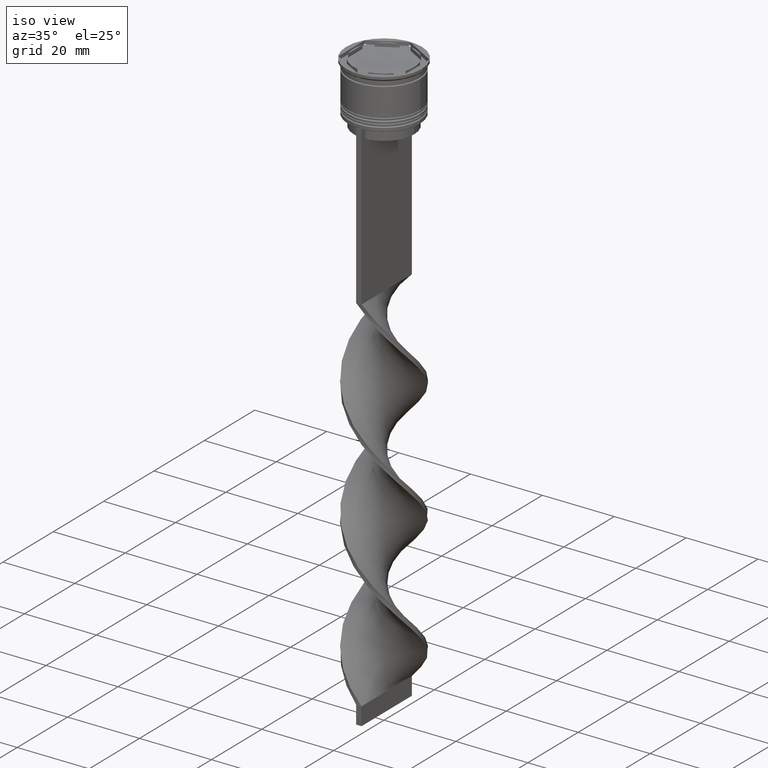
[diagram: clean part render]
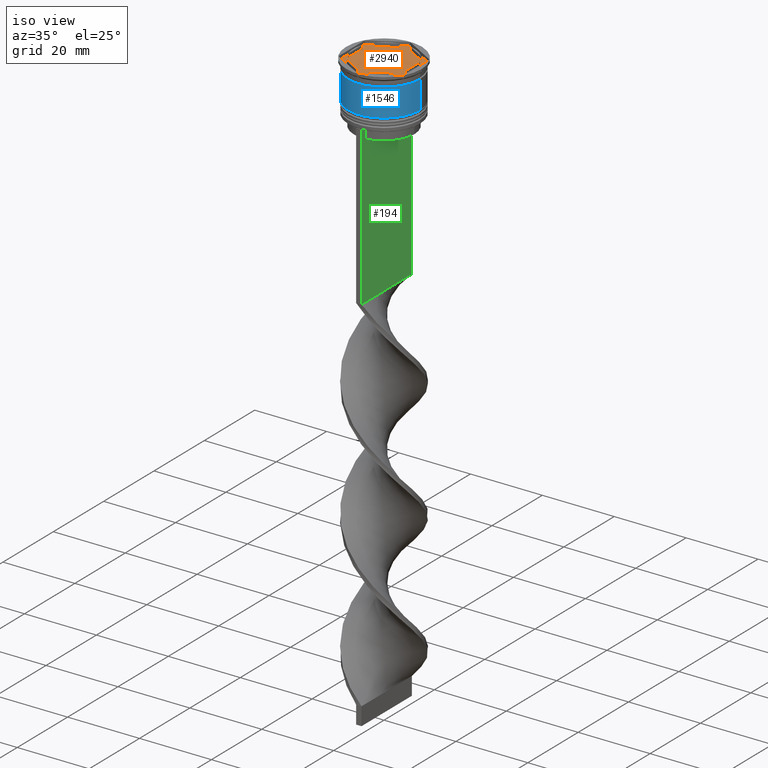
[diagram: same view with three faces highlighted in distinct colors, each labeled with its STEP entity id]
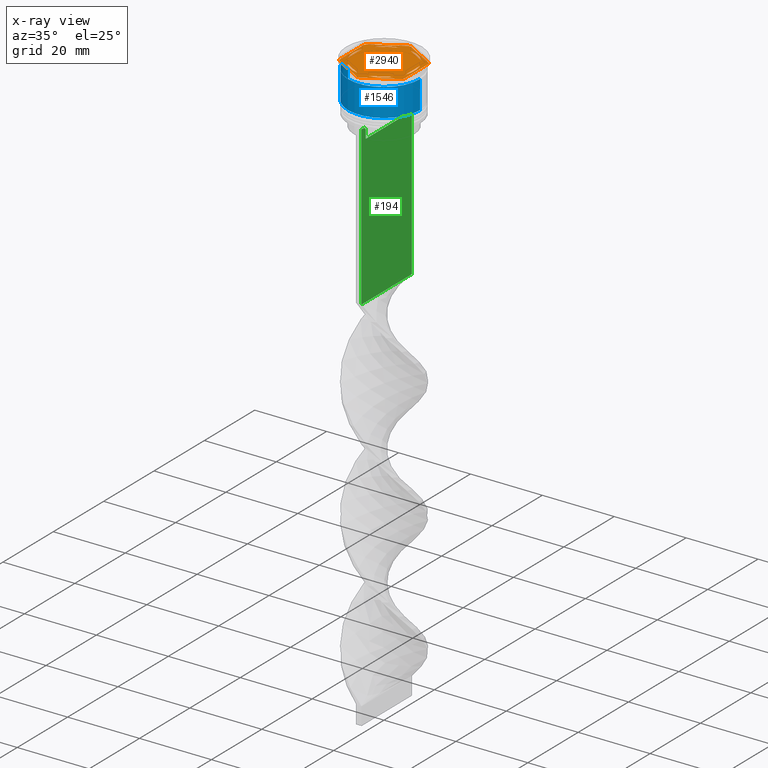
[diagram: x-ray of the same camera — body ghosted, the three highlighted faces saturated]
A machine part, iso view with three faces highlighted in distinct colors.
The next image is the same camera in x-ray (body ghosted, the three faces saturated) — at least one of them is partly hidden behind the body in this view.
Their STEP definitions:

[orange] entity #2940 — the highlighted planar face has unit normal (0, 0, 1).
#23 = CARTESIAN_POINT ( 'NONE',  ( 9.000000000000001776, -5.196152422706632024, -1.000000000000000000 ) ) ;
#25 = CIRCLE ( 'NONE', #2187, 10.19999999999999574 ) ;
#31 = DIRECTION ( 'NONE',  ( -0.8660254037844385966, 0.4999999999999999445, 0.000000000000000000 ) ) ;
#47 = DIRECTION ( 'NONE',  ( 1.000000000000000000, 0.000000000000000000, 0.000000000000000000 ) ) ;
#64 = VERTEX_POINT ( 'NONE', #3285 ) ;
#73 = CARTESIAN_POINT ( 'NONE',  ( -6.487468592766552078, -5.492062568641001619, -1.000000000000000888 ) ) ;
#101 = EDGE_LOOP ( 'NONE', ( #2293, #810 ) ) ;
#103 = CARTESIAN_POINT ( 'NONE',  ( 7.999999999999998224, -4.618802153517008513, -1.000000000000000888 ) ) ;
#108 = ORIENTED_EDGE ( 'NONE', *, *, #1693, .F. ) ;
#115 = ORIENTED_EDGE ( 'NONE', *, *, #3792, .T. ) ;
#167 = CARTESIAN_POINT ( 'NONE',  ( -0.3430780618347024080, -10.19422863405994306, -1.000000000000000000 ) ) ;
#171 = ORIENTED_EDGE ( 'NONE', *, *, #1843, .F. ) ;
#174 = ORIENTED_EDGE ( 'NONE', *, *, #1669, .F. ) ;
#176 = CARTESIAN_POINT ( 'NONE',  ( -8.000000000000000000, -2.872281323269016085, -1.000000000000000888 ) ) ;
#182 = CARTESIAN_POINT ( 'NONE',  ( 6.487468592766552078, 5.492062568641001619, -1.000000000000000888 ) ) ;
#183 = ORIENTED_EDGE ( 'NONE', *, *, #1201, .T. ) ;
#191 = ORIENTED_EDGE ( 'NONE', *, *, #2987, .F. ) ;
#196 = CARTESIAN_POINT ( 'NONE',  ( -8.656921938165295316, -5.394228634059957450, -1.000000000000000000 ) ) ;
#197 = DIRECTION ( 'NONE',  ( 1.000000000000000000, 0.000000000000000000, 0.000000000000000000 ) ) ;
#201 = LINE ( 'NONE', #3157, #2190 ) ;
#205 = ORIENTED_EDGE ( 'NONE', *, *, #2401, .F. ) ;
#211 = AXIS2_PLACEMENT_3D ( 'NONE', #902, #2722, #3254 ) ;
#228 = CARTESIAN_POINT ( 'NONE',  ( 0.000000000000000000, 0.000000000000000000, -1.000000000000000000 ) ) ;
#268 = VECTOR ( 'NONE', #3504, 1000.000000000000000 ) ;
#287 = LINE ( 'NONE', #2687, #2823 ) ;
#292 = CARTESIAN_POINT ( 'NONE',  ( 8.000000000000000000, 4.618802153517006737, -1.000000000000000888 ) ) ;
#344 = LINE ( 'NONE', #3664, #670 ) ;
#345 = CARTESIAN_POINT ( 'NONE',  ( 8.656921938165297092, 5.394228634059953897, -1.000000000000000000 ) ) ;
#364 = DIRECTION ( 'NONE',  ( 0.000000000000000000, 0.000000000000000000, 1.000000000000000000 ) ) ;
#372 = VERTEX_POINT ( 'NONE', #2478 ) ;
#384 = CARTESIAN_POINT ( 'NONE',  ( -1.512531407233448366, -8.364343891910017703, -1.000000000000000888 ) ) ;
#417 = CARTESIAN_POINT ( 'NONE',  ( -8.673617379884035472E-16, -9.237604307034013473, -1.000000000000000888 ) ) ;
#420 = CARTESIAN_POINT ( 'NONE',  ( 1.512531407233452363, -8.364343891910017703, -1.000000000000000888 ) ) ;
#451 = DIRECTION ( 'NONE',  ( 0.8660254037844384856, 0.5000000000000003331, -0.000000000000000000 ) ) ;
#472 = EDGE_LOOP ( 'NONE', ( #205, #3733 ) ) ;
#495 = FACE_BOUND ( 'NONE', #2106, .T. ) ;
#496 = EDGE_CURVE ( 'NONE', #1897, #690, #598, .T. ) ;
#516 = FACE_BOUND ( 'NONE', #101, .T. ) ;
#526 = CARTESIAN_POINT ( 'NONE',  ( 0.000000000000000000, 0.000000000000000000, -1.000000000000000000 ) ) ;
#543 = VERTEX_POINT ( 'NONE', #1035 ) ;
#554 = VERTEX_POINT ( 'NONE', #785 ) ;
#563 = VERTEX_POINT ( 'NONE', #809 ) ;
#565 = DIRECTION ( 'NONE',  ( -0.000000000000000000, -0.000000000000000000, -1.000000000000000000 ) ) ;
#571 = ORIENTED_EDGE ( 'NONE', *, *, #3606, .F. ) ;
#587 = VECTOR ( 'NONE', #3229, 1000.000000000000114 ) ;
#598 = LINE ( 'NONE', #292, #587 ) ;
#618 = LINE ( 'NONE', #1190, #1921 ) ;
#647 = DIRECTION ( 'NONE',  ( 0.000000000000000000, 1.000000000000000000, 0.000000000000000000 ) ) ;
#668 = AXIS2_PLACEMENT_3D ( 'NONE', #1735, #565, #3525 ) ;
#670 = VECTOR ( 'NONE', #1247, 1000.000000000000114 ) ;
#690 = VERTEX_POINT ( 'NONE', #182 ) ;
#695 = EDGE_CURVE ( 'NONE', #1066, #1394, #803, .T. ) ;
#719 = VECTOR ( 'NONE', #31, 1000.000000000000114 ) ;
#768 = EDGE_CURVE ( 'NONE', #2207, #3611, #3920, .T. ) ;
#775 = VERTEX_POINT ( 'NONE', #1887 ) ;
#785 = CARTESIAN_POINT ( 'NONE',  ( -1.512531407233451475, 8.364343891910017703, -1.000000000000000888 ) ) ;
#803 = LINE ( 'NONE', #3477, #1801 ) ;
#809 = CARTESIAN_POINT ( 'NONE',  ( 0.3430780618347059052, -10.19422863405994306, -1.000000000000000000 ) ) ;
#810 = ORIENTED_EDGE ( 'NONE', *, *, #768, .F. ) ;
#812 = DIRECTION ( 'NONE',  ( 0.000000000000000000, 0.000000000000000000, 1.000000000000000000 ) ) ;
#822 = DIRECTION ( 'NONE',  ( 0.000000000000000000, 0.000000000000000000, 1.000000000000000000 ) ) ;
#837 = FACE_BOUND ( 'NONE', #3366, .T. ) ;
#844 = CARTESIAN_POINT ( 'NONE',  ( 0.000000000000000000, 0.000000000000000000, -1.000000000000000000 ) ) ;
#857 = CIRCLE ( 'NONE', #3083, 8.500000000000000000 ) ;
#863 = VECTOR ( 'NONE', #3750, 1000.000000000000227 ) ;
#866 = ORIENTED_EDGE ( 'NONE', *, *, #695, .T. ) ;
#882 = DIRECTION ( 'NONE',  ( -0.000000000000000000, -0.000000000000000000, -1.000000000000000000 ) ) ;
#889 = EDGE_CURVE ( 'NONE', #3571, #3177, #618, .T. ) ;
#902 = CARTESIAN_POINT ( 'NONE',  ( 0.000000000000000000, 0.000000000000000000, -1.000000000000000000 ) ) ;
#909 = DIRECTION ( 'NONE',  ( -0.000000000000000000, -0.000000000000000000, -1.000000000000000000 ) ) ;
#952 = ORIENTED_EDGE ( 'NONE', *, *, #2453, .T. ) ;
#980 = CIRCLE ( 'NONE', #1481, 8.500000000000000000 ) ;
#1025 = CARTESIAN_POINT ( 'NONE',  ( 9.000000000000001776, 4.799999999999988276, -1.000000000000000000 ) ) ;
#1035 = CARTESIAN_POINT ( 'NONE',  ( -9.000000000000001776, -4.799999999999988276, -1.000000000000000000 ) ) ;
#1066 = VERTEX_POINT ( 'NONE', #1159 ) ;
#1083 = CARTESIAN_POINT ( 'NONE',  ( 0.000000000000000000, 0.000000000000000000, -1.000000000000000000 ) ) ;
#1096 = VERTEX_POINT ( 'NONE', #167 ) ;
#1141 = ORIENTED_EDGE ( 'NONE', *, *, #889, .F. ) ;
#1159 = CARTESIAN_POINT ( 'NONE',  ( -0.3430780618347059052, 10.19422863405994306, -1.000000000000000000 ) ) ;
#1162 = CIRCLE ( 'NONE', #3640, 10.19999999999999574 ) ;
#1183 = EDGE_CURVE ( 'NONE', #3616, #2654, #1162, .T. ) ;
#1190 = CARTESIAN_POINT ( 'NONE',  ( -8.000000000000000000, 4.618802153517004072, -1.000000000000000888 ) ) ;
#1201 = EDGE_CURVE ( 'NONE', #563, #3806, #287, .T. ) ;
#1247 = DIRECTION ( 'NONE',  ( 0.8660254037844387076, -0.4999999999999997224, 0.000000000000000000 ) ) ;
#1258 = ORIENTED_EDGE ( 'NONE', *, *, #1521, .F. ) ;
#1295 = CIRCLE ( 'NONE', #2828, 8.500000000000000000 ) ;
#1297 = AXIS2_PLACEMENT_3D ( 'NONE', #3596, #882, #3012 ) ;
#1335 = CARTESIAN_POINT ( 'NONE',  ( 0.000000000000000000, 0.000000000000000000, -1.000000000000000000 ) ) ;
#1367 = VECTOR ( 'NONE', #647, 1000.000000000000000 ) ;
#1371 = LINE ( 'NONE', #417, #2464 ) ;
#1394 = VERTEX_POINT ( 'NONE', #3270 ) ;
#1395 = ORIENTED_EDGE ( 'NONE', *, *, #2650, .F. ) ;
#1409 = DIRECTION ( 'NONE',  ( -0.8660254037844385966, -0.5000000000000001110, 0.000000000000000000 ) ) ;
#1453 = ORIENTED_EDGE ( 'NONE', *, *, #1870, .F. ) ;
#1458 = DIRECTION ( 'NONE',  ( 1.000000000000000000, 0.000000000000000000, 0.000000000000000000 ) ) ;
#1481 = AXIS2_PLACEMENT_3D ( 'NONE', #2456, #2167, #2807 ) ;
#1498 = LINE ( 'NONE', #1519, #3576 ) ;
#1519 = CARTESIAN_POINT ( 'NONE',  ( -9.000000000000001776, 5.196152422706632024, -1.000000000000000000 ) ) ;
#1521 = EDGE_CURVE ( 'NONE', #3657, #775, #980, .T. ) ;
#1534 = EDGE_LOOP ( 'NONE', ( #2986, #1141, #1723 ) ) ;
#1537 = DIRECTION ( 'NONE',  ( -0.000000000000000000, -0.000000000000000000, -1.000000000000000000 ) ) ;
#1562 = DIRECTION ( 'NONE',  ( 0.000000000000000000, 0.000000000000000000, 1.000000000000000000 ) ) ;
#1564 = AXIS2_PLACEMENT_3D ( 'NONE', #228, #822, #3294 ) ;
#1609 = CIRCLE ( 'NONE', #3831, 8.500000000000000000 ) ;
#1665 = VERTEX_POINT ( 'NONE', #196 ) ;
#1669 = EDGE_CURVE ( 'NONE', #1066, #2479, #25, .T. ) ;
#1672 = VERTEX_POINT ( 'NONE', #2943 ) ;
#1674 = VERTEX_POINT ( 'NONE', #2403 ) ;
#1679 = DIRECTION ( 'NONE',  ( 1.000000000000000000, 0.000000000000000000, 0.000000000000000000 ) ) ;
#1692 = DIRECTION ( 'NONE',  ( -0.8660254037844387076, -0.4999999999999998335, 0.000000000000000000 ) ) ;
#1693 = EDGE_CURVE ( 'NONE', #775, #3657, #2860, .T. ) ;
#1723 = ORIENTED_EDGE ( 'NONE', *, *, #2004, .F. ) ;
#1735 = CARTESIAN_POINT ( 'NONE',  ( 0.000000000000000000, 0.000000000000000000, -1.000000000000000000 ) ) ;
#1801 = VECTOR ( 'NONE', #1409, 1000.000000000000000 ) ;
#1810 = CIRCLE ( 'NONE', #3326, 10.19999999999999574 ) ;
#1828 = CARTESIAN_POINT ( 'NONE',  ( -8.000000000000000000, -4.618802153517006737, -1.000000000000000888 ) ) ;
#1841 = CARTESIAN_POINT ( 'NONE',  ( 8.000000000000000000, -2.872281323269017417, -1.000000000000000888 ) ) ;
#1843 = EDGE_CURVE ( 'NONE', #554, #372, #2825, .T. ) ;
#1870 = EDGE_CURVE ( 'NONE', #64, #1394, #2510, .T. ) ;
#1887 = CARTESIAN_POINT ( 'NONE',  ( 8.000000000000000000, 2.872281323269014752, -1.000000000000000888 ) ) ;
#1897 = VERTEX_POINT ( 'NONE', #2053 ) ;
#1921 = VECTOR ( 'NONE', #2733, 1000.000000000000000 ) ;
#1983 = CARTESIAN_POINT ( 'NONE',  ( 0.000000000000000000, 0.000000000000000000, -1.000000000000000000 ) ) ;
#1991 = AXIS2_PLACEMENT_3D ( 'NONE', #2497, #364, #2784 ) ;
#2004 = EDGE_CURVE ( 'NONE', #1672, #3571, #1609, .T. ) ;
#2009 = FACE_BOUND ( 'NONE', #2502, .T. ) ;
#2021 = DIRECTION ( 'NONE',  ( 0.000000000000000000, 0.000000000000000000, 1.000000000000000000 ) ) ;
#2046 = CARTESIAN_POINT ( 'NONE',  ( 9.000000000000001776, -4.799999999999988276, -1.000000000000000000 ) ) ;
#2053 = CARTESIAN_POINT ( 'NONE',  ( 1.512531407233448366, 8.364343891910017703, -1.000000000000000888 ) ) ;
#2106 = EDGE_LOOP ( 'NONE', ( #1395, #2525 ) ) ;
#2108 = CARTESIAN_POINT ( 'NONE',  ( 0.000000000000000000, 0.000000000000000000, -1.000000000000000000 ) ) ;
#2167 = DIRECTION ( 'NONE',  ( 0.000000000000000000, 0.000000000000000000, 1.000000000000000000 ) ) ;
#2182 = CARTESIAN_POINT ( 'NONE',  ( 0.000000000000000000, 0.000000000000000000, -1.000000000000000000 ) ) ;
#2187 = AXIS2_PLACEMENT_3D ( 'NONE', #526, #909, #3222 ) ;
#2190 = VECTOR ( 'NONE', #451, 1000.000000000000114 ) ;
#2198 = CIRCLE ( 'NONE', #211, 10.19999999999999574 ) ;
#2207 = VERTEX_POINT ( 'NONE', #384 ) ;
#2293 = ORIENTED_EDGE ( 'NONE', *, *, #2521, .F. ) ;
#2328 = FACE_BOUND ( 'NONE', #1534, .T. ) ;
#2356 = DIRECTION ( 'NONE',  ( 0.000000000000000000, 0.000000000000000000, 1.000000000000000000 ) ) ;
#2395 = FACE_OUTER_BOUND ( 'NONE', #3900, .T. ) ;
#2398 = EDGE_CURVE ( 'NONE', #1665, #1096, #344, .T. ) ;
#2401 = EDGE_CURVE ( 'NONE', #690, #1897, #2642, .T. ) ;
#2403 = CARTESIAN_POINT ( 'NONE',  ( 6.487468592766547637, -5.492062568641006060, -1.000000000000000888 ) ) ;
#2453 = EDGE_CURVE ( 'NONE', #64, #543, #1498, .T. ) ;
#2456 = CARTESIAN_POINT ( 'NONE',  ( 0.000000000000000000, 0.000000000000000000, -1.000000000000000000 ) ) ;
#2460 = CIRCLE ( 'NONE', #2519, 8.500000000000000000 ) ;
#2462 = DIRECTION ( 'NONE',  ( 0.000000000000000000, -1.000000000000000000, 0.000000000000000000 ) ) ;
#2463 = CARTESIAN_POINT ( 'NONE',  ( 8.656921938165297092, -5.394228634059953009, -1.000000000000000000 ) ) ;
#2464 = VECTOR ( 'NONE', #1692, 1000.000000000000114 ) ;
#2478 = CARTESIAN_POINT ( 'NONE',  ( -6.487468592766553854, 5.492062568640999842, -1.000000000000000888 ) ) ;
#2479 = VERTEX_POINT ( 'NONE', #3383 ) ;
#2497 = CARTESIAN_POINT ( 'NONE',  ( 0.000000000000000000, 0.000000000000000000, -1.000000000000000000 ) ) ;
#2502 = EDGE_LOOP ( 'NONE', ( #1258, #108 ) ) ;
#2505 = EDGE_CURVE ( 'NONE', #563, #1096, #1810, .T. ) ;
#2510 = CIRCLE ( 'NONE', #668, 10.19999999999999574 ) ;
#2519 = AXIS2_PLACEMENT_3D ( 'NONE', #1083, #2356, #197 ) ;
#2521 = EDGE_CURVE ( 'NONE', #3611, #2207, #857, .T. ) ;
#2525 = ORIENTED_EDGE ( 'NONE', *, *, #3847, .F. ) ;
#2559 = DIRECTION ( 'NONE',  ( 0.000000000000000000, 0.000000000000000000, 1.000000000000000000 ) ) ;
#2594 = EDGE_CURVE ( 'NONE', #372, #554, #201, .T. ) ;
#2642 = CIRCLE ( 'NONE', #1991, 8.500000000000000000 ) ;
#2650 = EDGE_CURVE ( 'NONE', #2806, #1674, #1295, .T. ) ;
#2654 = VERTEX_POINT ( 'NONE', #1025 ) ;
#2687 = CARTESIAN_POINT ( 'NONE',  ( 2.607697573705103160E-15, -10.39230484541326405, -1.000000000000000000 ) ) ;
#2711 = ORIENTED_EDGE ( 'NONE', *, *, #3280, .T. ) ;
#2722 = DIRECTION ( 'NONE',  ( -0.000000000000000000, -0.000000000000000000, -1.000000000000000000 ) ) ;
#2727 = DIRECTION ( 'NONE',  ( -0.000000000000000000, -0.000000000000000000, -1.000000000000000000 ) ) ;
#2733 = DIRECTION ( 'NONE',  ( 0.000000000000000000, 1.000000000000000000, 0.000000000000000000 ) ) ;
#2738 = DIRECTION ( 'NONE',  ( 1.000000000000000000, 0.000000000000000000, 0.000000000000000000 ) ) ;
#2784 = DIRECTION ( 'NONE',  ( 1.000000000000000000, 0.000000000000000000, 0.000000000000000000 ) ) ;
#2806 = VERTEX_POINT ( 'NONE', #420 ) ;
#2807 = DIRECTION ( 'NONE',  ( 1.000000000000000000, 0.000000000000000000, 0.000000000000000000 ) ) ;
#2823 = VECTOR ( 'NONE', #3268, 1000.000000000000000 ) ;
#2825 = CIRCLE ( 'NONE', #3709, 8.500000000000000000 ) ;
#2828 = AXIS2_PLACEMENT_3D ( 'NONE', #1983, #2021, #3193 ) ;
#2860 = LINE ( 'NONE', #103, #268 ) ;
#2871 = LINE ( 'NONE', #3475, #863 ) ;
#2877 = VERTEX_POINT ( 'NONE', #2046 ) ;
#2888 = ORIENTED_EDGE ( 'NONE', *, *, #2505, .F. ) ;
#2940 = ADVANCED_FACE ( 'NONE', ( #3552, #2009, #495, #516, #2328, #837, #2395 ), #3573, .T. ) ;
#2943 = CARTESIAN_POINT ( 'NONE',  ( -8.500000000000000000, 0.000000000000000000, -1.000000000000000000 ) ) ;
#2986 = ORIENTED_EDGE ( 'NONE', *, *, #3482, .F. ) ;
#2987 = EDGE_CURVE ( 'NONE', #2877, #3806, #3838, .T. ) ;
#3012 = DIRECTION ( 'NONE',  ( 1.000000000000000000, 8.881784197001252323E-16, 0.000000000000000000 ) ) ;
#3035 = CARTESIAN_POINT ( 'NONE',  ( 0.000000000000000000, 0.000000000000000000, -1.000000000000000000 ) ) ;
#3083 = AXIS2_PLACEMENT_3D ( 'NONE', #3035, #1562, #47 ) ;
#3136 = ORIENTED_EDGE ( 'NONE', *, *, #2398, .T. ) ;
#3154 = ORIENTED_EDGE ( 'NONE', *, *, #2594, .F. ) ;
#3157 = CARTESIAN_POINT ( 'NONE',  ( 8.673617379884035472E-16, 9.237604307034013473, -1.000000000000000888 ) ) ;
#3177 = VERTEX_POINT ( 'NONE', #3402 ) ;
#3193 = DIRECTION ( 'NONE',  ( 1.000000000000000000, 0.000000000000000000, 0.000000000000000000 ) ) ;
#3204 = ORIENTED_EDGE ( 'NONE', *, *, #1183, .F. ) ;
#3222 = DIRECTION ( 'NONE',  ( 1.000000000000000000, 1.598721155460225418E-14, 0.000000000000000000 ) ) ;
#3229 = DIRECTION ( 'NONE',  ( 0.8660254037844385966, -0.4999999999999999445, 0.000000000000000000 ) ) ;
#3254 = DIRECTION ( 'NONE',  ( 1.000000000000000000, 0.000000000000000000, 0.000000000000000000 ) ) ;
#3268 = DIRECTION ( 'NONE',  ( 0.8660254037844385966, 0.5000000000000001110, 0.000000000000000000 ) ) ;
#3270 = CARTESIAN_POINT ( 'NONE',  ( -8.656921938165297092, 5.394228634059953009, -1.000000000000000000 ) ) ;
#3280 = EDGE_CURVE ( 'NONE', #3616, #2479, #2871, .T. ) ;
#3285 = CARTESIAN_POINT ( 'NONE',  ( -9.000000000000001776, 4.799999999999988276, -1.000000000000000000 ) ) ;
#3294 = DIRECTION ( 'NONE',  ( 1.000000000000000000, 0.000000000000000000, -0.000000000000000000 ) ) ;
#3326 = AXIS2_PLACEMENT_3D ( 'NONE', #2108, #1537, #2738 ) ;
#3347 = LINE ( 'NONE', #23, #1367 ) ;
#3366 = EDGE_LOOP ( 'NONE', ( #171, #3154 ) ) ;
#3383 = CARTESIAN_POINT ( 'NONE',  ( 0.3430780618347050170, 10.19422863405994306, -1.000000000000000000 ) ) ;
#3390 = DIRECTION ( 'NONE',  ( 1.000000000000000000, 0.000000000000000000, 0.000000000000000000 ) ) ;
#3402 = CARTESIAN_POINT ( 'NONE',  ( -8.000000000000000000, 2.872281323269016085, -1.000000000000000888 ) ) ;
#3475 = CARTESIAN_POINT ( 'NONE',  ( 9.000000000000001776, 5.196152422706632912, -1.000000000000000000 ) ) ;
#3477 = CARTESIAN_POINT ( 'NONE',  ( 0.000000000000000000, 10.39230484541326582, -1.000000000000000000 ) ) ;
#3482 = EDGE_CURVE ( 'NONE', #3177, #1672, #2460, .T. ) ;
#3504 = DIRECTION ( 'NONE',  ( -1.877893248421449036E-16, -1.000000000000000000, 0.000000000000000000 ) ) ;
#3525 = DIRECTION ( 'NONE',  ( 1.000000000000000000, 0.000000000000000000, 0.000000000000000000 ) ) ;
#3552 = FACE_BOUND ( 'NONE', #472, .T. ) ;
#3571 = VERTEX_POINT ( 'NONE', #176 ) ;
#3573 = PLANE ( 'NONE',  #1564 ) ;
#3576 = VECTOR ( 'NONE', #2462, 1000.000000000000000 ) ;
#3596 = CARTESIAN_POINT ( 'NONE',  ( 0.000000000000000000, 0.000000000000000000, -1.000000000000000000 ) ) ;
#3606 = EDGE_CURVE ( 'NONE', #1665, #543, #2198, .T. ) ;
#3611 = VERTEX_POINT ( 'NONE', #73 ) ;
#3616 = VERTEX_POINT ( 'NONE', #345 ) ;
#3640 = AXIS2_PLACEMENT_3D ( 'NONE', #2182, #2727, #3390 ) ;
#3657 = VERTEX_POINT ( 'NONE', #1841 ) ;
#3664 = CARTESIAN_POINT ( 'NONE',  ( -9.000000000000001776, -5.196152422706632912, -1.000000000000000000 ) ) ;
#3709 = AXIS2_PLACEMENT_3D ( 'NONE', #1335, #2559, #1679 ) ;
#3733 = ORIENTED_EDGE ( 'NONE', *, *, #496, .F. ) ;
#3750 = DIRECTION ( 'NONE',  ( -0.8660254037844385966, 0.5000000000000000000, 0.000000000000000000 ) ) ;
#3792 = EDGE_CURVE ( 'NONE', #2877, #2654, #3347, .T. ) ;
#3806 = VERTEX_POINT ( 'NONE', #2463 ) ;
#3831 = AXIS2_PLACEMENT_3D ( 'NONE', #844, #812, #1458 ) ;
#3838 = CIRCLE ( 'NONE', #1297, 10.19999999999999574 ) ;
#3847 = EDGE_CURVE ( 'NONE', #1674, #2806, #1371, .T. ) ;
#3900 = EDGE_LOOP ( 'NONE', ( #115, #3204, #2711, #174, #866, #1453, #952, #571, #3136, #2888, #183, #191 ) ) ;
#3920 = LINE ( 'NONE', #1828, #719 ) ;

[blue] entity #1546 — the highlighted cylindrical surface (partial cylindrical patch) has radius 10 mm, axis along (-0, -0, 1).
#43 = EDGE_CURVE ( 'NONE', #1056, #3472, #657, .T. ) ;
#222 = CARTESIAN_POINT ( 'NONE',  ( 0.000000000000000000, 0.000000000000000000, -2.700000000000001954 ) ) ;
#426 = EDGE_LOOP ( 'NONE', ( #1664, #1941, #2162, #2612 ) ) ;
#443 = CARTESIAN_POINT ( 'NONE',  ( -10.00000000000000000, 1.224646799147353256E-15, 0.000000000000000000 ) ) ;
#464 = VECTOR ( 'NONE', #2294, 1000.000000000000000 ) ;
#640 = FACE_OUTER_BOUND ( 'NONE', #426, .T. ) ;
#657 = CIRCLE ( 'NONE', #1864, 9.999999999999998224 ) ;
#940 = DIRECTION ( 'NONE',  ( -0.000000000000000000, -0.000000000000000000, 1.000000000000000000 ) ) ;
#950 = LINE ( 'NONE', #1844, #985 ) ;
#985 = VECTOR ( 'NONE', #2724, 1000.000000000000000 ) ;
#1001 = DIRECTION ( 'NONE',  ( -0.000000000000000000, -0.000000000000000000, 1.000000000000000000 ) ) ;
#1056 = VERTEX_POINT ( 'NONE', #2052 ) ;
#1097 = AXIS2_PLACEMENT_3D ( 'NONE', #1272, #940, #3695 ) ;
#1139 = CARTESIAN_POINT ( 'NONE',  ( 9.999999999999998224, 0.000000000000000000, -2.700000000000001954 ) ) ;
#1272 = CARTESIAN_POINT ( 'NONE',  ( 0.000000000000000000, 0.000000000000000000, 0.000000000000000000 ) ) ;
#1447 = DIRECTION ( 'NONE',  ( -0.000000000000000000, -0.000000000000000000, 1.000000000000000000 ) ) ;
#1546 = ADVANCED_FACE ( 'NONE', ( #640 ), #3065, .T. ) ;
#1621 = AXIS2_PLACEMENT_3D ( 'NONE', #3721, #1001, #2832 ) ;
#1664 = ORIENTED_EDGE ( 'NONE', *, *, #1813, .F. ) ;
#1813 = EDGE_CURVE ( 'NONE', #2348, #1056, #3427, .T. ) ;
#1844 = CARTESIAN_POINT ( 'NONE',  ( 10.00000000000000000, 0.000000000000000000, 0.000000000000000000 ) ) ;
#1864 = AXIS2_PLACEMENT_3D ( 'NONE', #222, #1447, #3190 ) ;
#1941 = ORIENTED_EDGE ( 'NONE', *, *, #3389, .T. ) ;
#2052 = CARTESIAN_POINT ( 'NONE',  ( -9.999999999999998224, 1.224646799147353256E-15, -2.700000000000001954 ) ) ;
#2065 = CIRCLE ( 'NONE', #1621, 10.00000000000000178 ) ;
#2162 = ORIENTED_EDGE ( 'NONE', *, *, #2208, .T. ) ;
#2208 = EDGE_CURVE ( 'NONE', #2630, #3472, #950, .T. ) ;
#2294 = DIRECTION ( 'NONE',  ( -0.000000000000000000, -0.000000000000000000, 1.000000000000000000 ) ) ;
#2348 = VERTEX_POINT ( 'NONE', #2994 ) ;
#2612 = ORIENTED_EDGE ( 'NONE', *, *, #43, .F. ) ;
#2630 = VERTEX_POINT ( 'NONE', #3531 ) ;
#2724 = DIRECTION ( 'NONE',  ( -0.000000000000000000, -0.000000000000000000, 1.000000000000000000 ) ) ;
#2832 = DIRECTION ( 'NONE',  ( 1.000000000000000000, 0.000000000000000000, 0.000000000000000000 ) ) ;
#2994 = CARTESIAN_POINT ( 'NONE',  ( -10.00000000000000178, 1.224646799147353454E-15, -10.50000000000000000 ) ) ;
#3065 = CYLINDRICAL_SURFACE ( 'NONE', #1097, 10.00000000000000000 ) ;
#3190 = DIRECTION ( 'NONE',  ( 1.000000000000000000, 0.000000000000000000, 0.000000000000000000 ) ) ;
#3389 = EDGE_CURVE ( 'NONE', #2348, #2630, #2065, .T. ) ;
#3427 = LINE ( 'NONE', #443, #464 ) ;
#3472 = VERTEX_POINT ( 'NONE', #1139 ) ;
#3531 = CARTESIAN_POINT ( 'NONE',  ( 10.00000000000000178, 0.000000000000000000, -10.50000000000000000 ) ) ;
#3695 = DIRECTION ( 'NONE',  ( 1.000000000000000000, 0.000000000000000000, 0.000000000000000000 ) ) ;
#3721 = CARTESIAN_POINT ( 'NONE',  ( 0.000000000000000000, 0.000000000000000000, -10.50000000000000000 ) ) ;

[green] entity #194 — the highlighted planar face has unit normal (-1, 0, 0).
#58 = CARTESIAN_POINT ( 'NONE',  ( 0.7500000000000001110, 9.999999999999998224, 6.056171120131581098 ) ) ;
#144 = DIRECTION ( 'NONE',  ( 0.000000000000000000, 1.000000000000000000, 0.000000000000000000 ) ) ;
#158 = CARTESIAN_POINT ( 'NONE',  ( 0.7500000000000001110, -8.701063080777121428, -14.16668447713511725 ) ) ;
#193 = VECTOR ( 'NONE', #2598, 1000.000000000000000 ) ;
#194 = ADVANCED_FACE ( 'NONE', ( #1926 ), #1067, .F. ) ;
#248 = CARTESIAN_POINT ( 'NONE',  ( 0.7500000000000001110, 9.999999999999998224, -14.00000000000000178 ) ) ;
#274 = DIRECTION ( 'NONE',  ( 0.000000000000000000, 0.000000000000000000, -1.000000000000000000 ) ) ;
#294 = B_SPLINE_CURVE_WITH_KNOTS ( 'NONE', 3,
 ( #3093, #2485, #3687, #366 ),
 .UNSPECIFIED., .F., .F.,
 ( 4, 4 ),
 ( 0.01512225952876174867, 0.01583070519299695222 ),
 .UNSPECIFIED. ) ;
#366 = CARTESIAN_POINT ( 'NONE',  ( 0.7500000000000001110, 8.366450860430608927, -14.50000000000000000 ) ) ;
#375 = ORIENTED_EDGE ( 'NONE', *, *, #2081, .T. ) ;
#527 = CARTESIAN_POINT ( 'NONE',  ( 0.7500000000000001110, 9.871550030263739117, -14.00000000000000178 ) ) ;
#545 = EDGE_CURVE ( 'NONE', #3258, #870, #2938, .T. ) ;
#553 = EDGE_CURVE ( 'NONE', #3713, #2905, #1440, .T. ) ;
#621 = VERTEX_POINT ( 'NONE', #1900 ) ;
#658 = VECTOR ( 'NONE', #2922, 1000.000000000000000 ) ;
#679 = B_SPLINE_CURVE_WITH_KNOTS ( 'NONE', 3,
 ( #1108, #1721, #158, #3188 ),
 .UNSPECIFIED., .F., .F.,
 ( 4, 4 ),
 ( 0.03866293624047253963, 0.03937282246709320616 ),
 .UNSPECIFIED. ) ;
#699 = EDGE_CURVE ( 'NONE', #3446, #1753, #3752, .T. ) ;
#789 = VECTOR ( 'NONE', #3237, 1000.000000000000000 ) ;
#821 = EDGE_CURVE ( 'NONE', #621, #3713, #1848, .T. ) ;
#870 = VERTEX_POINT ( 'NONE', #3908 ) ;
#893 = ORIENTED_EDGE ( 'NONE', *, *, #821, .T. ) ;
#944 = DIRECTION ( 'NONE',  ( 0.000000000000000000, -1.000000000000000000, 0.000000000000000000 ) ) ;
#993 = ORIENTED_EDGE ( 'NONE', *, *, #3436, .T. ) ;
#1023 = DIRECTION ( 'NONE',  ( -1.000000000000000000, 0.000000000000000000, 0.000000000000000000 ) ) ;
#1061 = VERTEX_POINT ( 'NONE', #3502 ) ;
#1067 = PLANE ( 'NONE',  #1155 ) ;
#1075 = CARTESIAN_POINT ( 'NONE',  ( 0.7500000000000001110, -8.366450860430608927, 0.000000000000000000 ) ) ;
#1108 = CARTESIAN_POINT ( 'NONE',  ( 0.7500000000000001110, -8.366450860430608927, -14.50000000000000000 ) ) ;
#1155 = AXIS2_PLACEMENT_3D ( 'NONE', #3473, #1023, #2830 ) ;
#1156 = DIRECTION ( 'NONE',  ( 0.000000000000000000, -1.000000000000000000, 0.000000000000000000 ) ) ;
#1268 = LINE ( 'NONE', #1886, #2890 ) ;
#1330 = CARTESIAN_POINT ( 'NONE',  ( 0.7500000000000001110, -10.00000000000000533, -14.00000000000000178 ) ) ;
#1343 = ORIENTED_EDGE ( 'NONE', *, *, #545, .T. ) ;
#1437 = CARTESIAN_POINT ( 'NONE',  ( 0.7500000000000001110, -8.366450860430608927, -14.50000000000000000 ) ) ;
#1440 = LINE ( 'NONE', #1075, #658 ) ;
#1442 = CARTESIAN_POINT ( 'NONE',  ( 0.7500000000000001110, -10.00000000000000533, -58.00000000000000000 ) ) ;
#1445 = CARTESIAN_POINT ( 'NONE',  ( 0.7500000000000002220, 9.999999999999998224, -58.00000000000000000 ) ) ;
#1605 = ORIENTED_EDGE ( 'NONE', *, *, #1639, .T. ) ;
#1612 = VECTOR ( 'NONE', #144, 1000.000000000000000 ) ;
#1616 = VECTOR ( 'NONE', #944, 1000.000000000000000 ) ;
#1639 = EDGE_CURVE ( 'NONE', #1061, #621, #2665, .T. ) ;
#1717 = CARTESIAN_POINT ( 'NONE',  ( 0.7500000000000001110, -10.00000000000000533, 6.056171120131581098 ) ) ;
#1721 = CARTESIAN_POINT ( 'NONE',  ( 0.7500000000000001110, -8.533766903463440912, -14.33335220807192023 ) ) ;
#1753 = VERTEX_POINT ( 'NONE', #2606 ) ;
#1778 = LINE ( 'NONE', #1717, #789 ) ;
#1780 = CARTESIAN_POINT ( 'NONE',  ( 0.7500000000000001110, 8.366450860430608927, 0.000000000000000000 ) ) ;
#1848 = LINE ( 'NONE', #3671, #3703 ) ;
#1860 = CARTESIAN_POINT ( 'NONE',  ( 0.7500000000000001110, -10.00000000000000533, -14.00000000000000178 ) ) ;
#1886 = CARTESIAN_POINT ( 'NONE',  ( 0.7500000000000001110, -10.00000000000000533, -14.00000000000000178 ) ) ;
#1894 = EDGE_CURVE ( 'NONE', #870, #1910, #1778, .T. ) ;
#1900 = CARTESIAN_POINT ( 'NONE',  ( 0.7500000000000001110, 8.366450860430608927, -17.00000000000000000 ) ) ;
#1910 = VERTEX_POINT ( 'NONE', #1442 ) ;
#1926 = FACE_OUTER_BOUND ( 'NONE', #2861, .T. ) ;
#1967 = CARTESIAN_POINT ( 'NONE',  ( 0.7500000000000001110, -10.00000000000000533, -58.00000000000000000 ) ) ;
#2050 = EDGE_CURVE ( 'NONE', #1753, #1061, #294, .T. ) ;
#2081 = EDGE_CURVE ( 'NONE', #2842, #3258, #1268, .T. ) ;
#2194 = LINE ( 'NONE', #1860, #1616 ) ;
#2200 = DIRECTION ( 'NONE',  ( 0.000000000000000000, -1.000000000000000000, 0.000000000000000000 ) ) ;
#2332 = ORIENTED_EDGE ( 'NONE', *, *, #2626, .T. ) ;
#2354 = VERTEX_POINT ( 'NONE', #248 ) ;
#2465 = ORIENTED_EDGE ( 'NONE', *, *, #553, .T. ) ;
#2482 = EDGE_CURVE ( 'NONE', #2354, #3491, #2759, .T. ) ;
#2485 = CARTESIAN_POINT ( 'NONE',  ( 0.7500000000000001110, 8.701063075415250481, -14.16668448247791545 ) ) ;
#2579 = VECTOR ( 'NONE', #274, 1000.000000000000000 ) ;
#2580 = CARTESIAN_POINT ( 'NONE',  ( 0.7500000000000001110, -8.868342573446296839, -14.00000000000000178 ) ) ;
#2598 = DIRECTION ( 'NONE',  ( 0.000000000000000000, -1.000000000000000000, 0.000000000000000000 ) ) ;
#2606 = CARTESIAN_POINT ( 'NONE',  ( 0.7500000000000001110, 8.868342573446296839, -14.00000000000000178 ) ) ;
#2626 = EDGE_CURVE ( 'NONE', #1910, #3491, #3210, .T. ) ;
#2665 = LINE ( 'NONE', #1780, #3132 ) ;
#2686 = ORIENTED_EDGE ( 'NONE', *, *, #699, .T. ) ;
#2695 = VECTOR ( 'NONE', #1156, 1000.000000000000000 ) ;
#2707 = DIRECTION ( 'NONE',  ( 0.000000000000000000, 0.000000000000000000, -1.000000000000000000 ) ) ;
#2759 = LINE ( 'NONE', #58, #2579 ) ;
#2830 = DIRECTION ( 'NONE',  ( 0.000000000000000000, 0.000000000000000000, 1.000000000000000000 ) ) ;
#2842 = VERTEX_POINT ( 'NONE', #2580 ) ;
#2861 = EDGE_LOOP ( 'NONE', ( #2686, #2972, #1605, #893, #2465, #993, #375, #1343, #3225, #2332, #3917, #3523 ) ) ;
#2890 = VECTOR ( 'NONE', #2200, 1000.000000000000000 ) ;
#2905 = VERTEX_POINT ( 'NONE', #1437 ) ;
#2922 = DIRECTION ( 'NONE',  ( -0.000000000000000000, -0.000000000000000000, 1.000000000000000000 ) ) ;
#2938 = LINE ( 'NONE', #3876, #2695 ) ;
#2972 = ORIENTED_EDGE ( 'NONE', *, *, #2050, .T. ) ;
#3033 = EDGE_CURVE ( 'NONE', #2354, #3446, #2194, .T. ) ;
#3078 = DIRECTION ( 'NONE',  ( 0.000000000000000000, -1.000000000000000000, 0.000000000000000000 ) ) ;
#3093 = CARTESIAN_POINT ( 'NONE',  ( 0.7500000000000001110, 8.868342573446296839, -14.00000000000000178 ) ) ;
#3132 = VECTOR ( 'NONE', #2707, 1000.000000000000000 ) ;
#3188 = CARTESIAN_POINT ( 'NONE',  ( 0.7500000000000001110, -8.868342573446296839, -14.00000000000000178 ) ) ;
#3210 = LINE ( 'NONE', #1967, #1612 ) ;
#3225 = ORIENTED_EDGE ( 'NONE', *, *, #1894, .T. ) ;
#3237 = DIRECTION ( 'NONE',  ( 0.000000000000000000, 0.000000000000000000, -1.000000000000000000 ) ) ;
#3258 = VERTEX_POINT ( 'NONE', #3421 ) ;
#3421 = CARTESIAN_POINT ( 'NONE',  ( 0.7500000000000001110, -9.871550030263739117, -14.00000000000000178 ) ) ;
#3436 = EDGE_CURVE ( 'NONE', #2905, #2842, #679, .T. ) ;
#3446 = VERTEX_POINT ( 'NONE', #527 ) ;
#3473 = CARTESIAN_POINT ( 'NONE',  ( 0.7500000000000001110, -10.00000000000000533, 6.056171120131581098 ) ) ;
#3491 = VERTEX_POINT ( 'NONE', #1445 ) ;
#3502 = CARTESIAN_POINT ( 'NONE',  ( 0.7500000000000001110, 8.366450860430608927, -14.50000000000000000 ) ) ;
#3523 = ORIENTED_EDGE ( 'NONE', *, *, #3033, .T. ) ;
#3642 = CARTESIAN_POINT ( 'NONE',  ( 0.7500000000000001110, -8.366450860430608927, -17.00000000000000000 ) ) ;
#3671 = CARTESIAN_POINT ( 'NONE',  ( 0.7500000000000001110, 8.400000000000003908, -17.00000000000000000 ) ) ;
#3687 = CARTESIAN_POINT ( 'NONE',  ( 0.7500000000000001110, 8.533766897779925031, -14.33335221373273605 ) ) ;
#3703 = VECTOR ( 'NONE', #3078, 1000.000000000000000 ) ;
#3713 = VERTEX_POINT ( 'NONE', #3642 ) ;
#3752 = LINE ( 'NONE', #1330, #193 ) ;
#3876 = CARTESIAN_POINT ( 'NONE',  ( 0.7500000000000001110, -10.00000000000000533, -14.00000000000000178 ) ) ;
#3908 = CARTESIAN_POINT ( 'NONE',  ( 0.7500000000000001110, -10.00000000000000533, -14.00000000000000178 ) ) ;
#3917 = ORIENTED_EDGE ( 'NONE', *, *, #2482, .F. ) ;